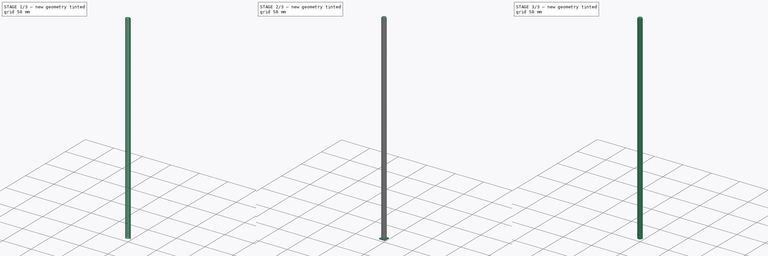
[diagram: build sequence overview — one tinted view per stage of 3, left to right]
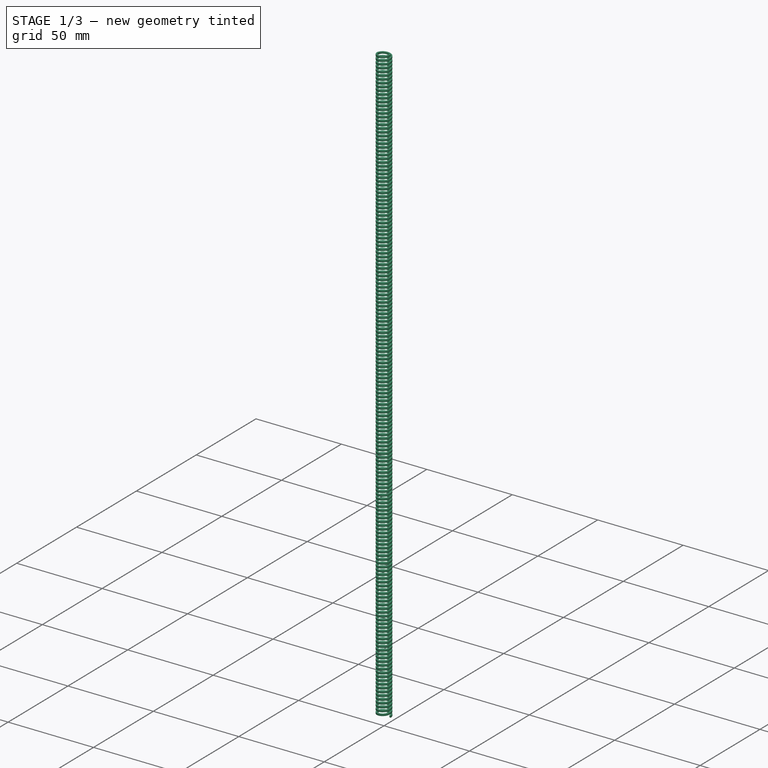
[diagram: stage 1 of 3 — iso view after this stage's code; geometry added in this stage tinted green]
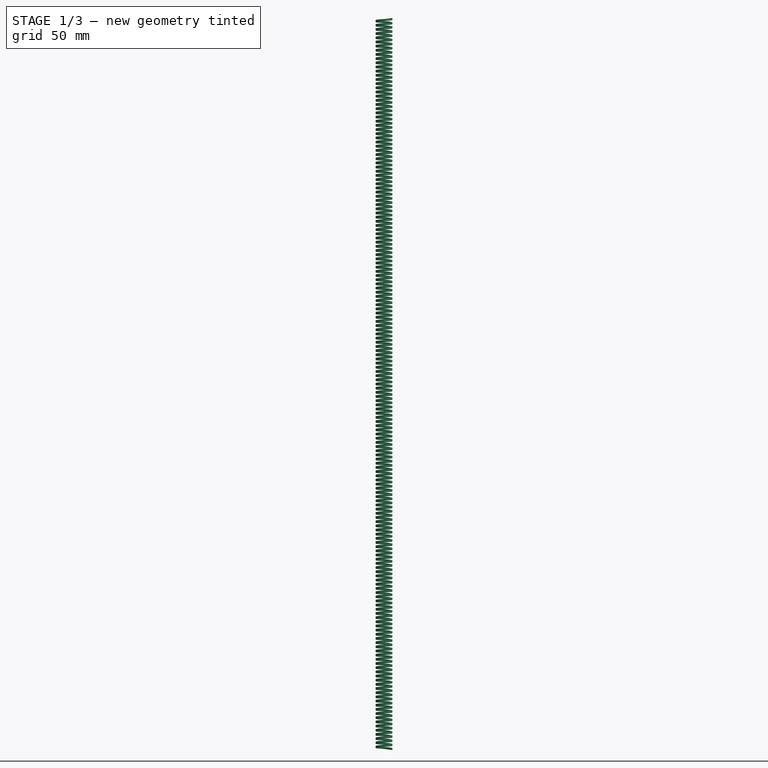
[diagram: stage 1 of 3 — front view after this stage's code; geometry added in this stage tinted green]
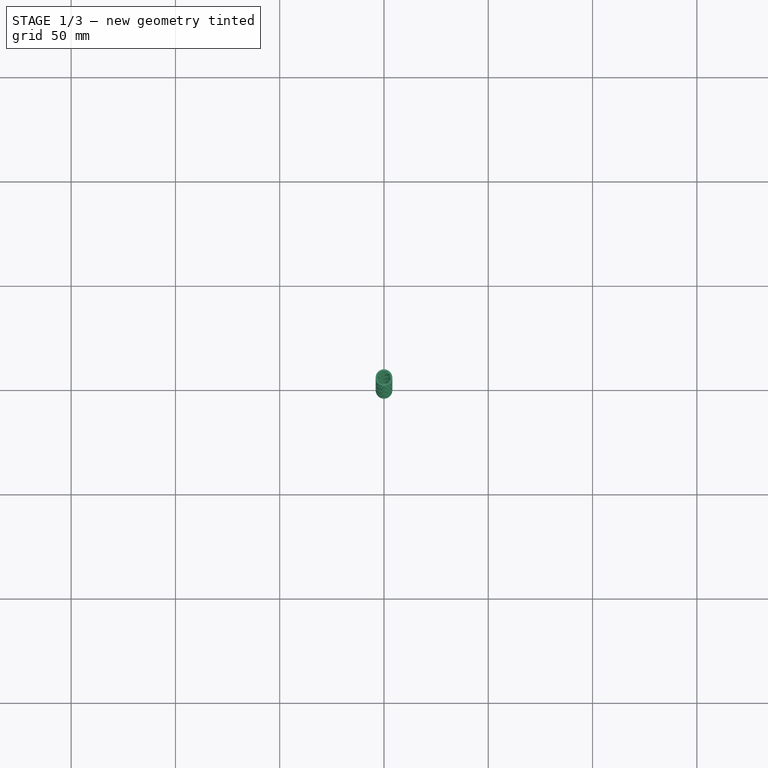
[diagram: stage 1 of 3 — top view after this stage's code; geometry added in this stage tinted green]
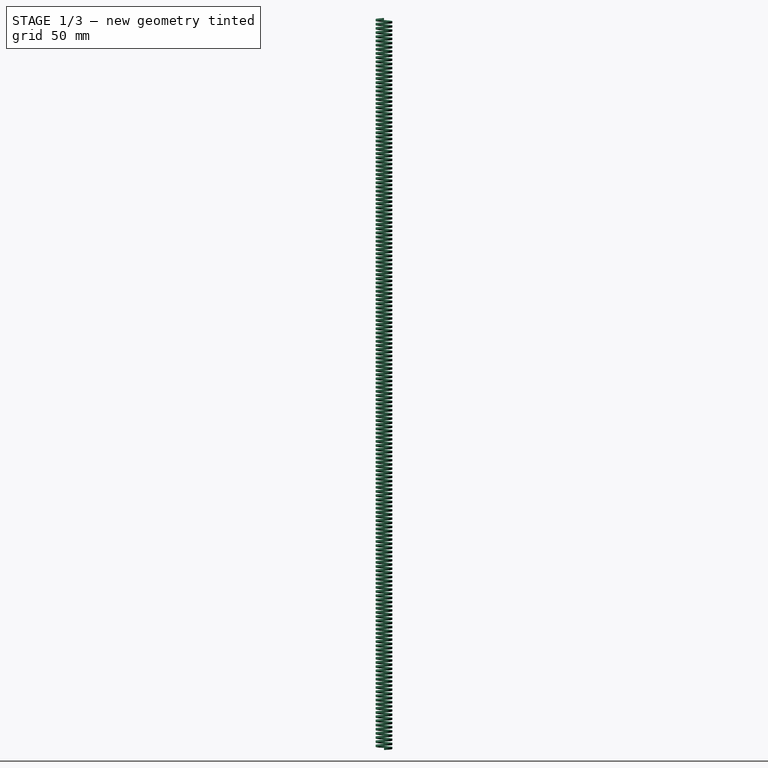
[diagram: stage 1 of 3 — right view after this stage's code; geometry added in this stage tinted green]
FCSTD DOCUMENT  (FreeCAD 0.16R4945 (Git))
Label: Lead Screw 8mm-2.0 x 350mm
License: All rights reserved
LicenseURL: http://en.wikipedia.org/wiki/All_rights_reserved
objects: Sketcher::SketchObject×2, Part::Cut×2, Part::Cylinder×1, PartDesign::Pad×1, Part::Feature×1, Part::Helix×1, Part::Sweep×1, Part::FeaturePython×1, Part::MultiFuse×1
note: 12 computed .brp shape members not serialized (recipe doc carries the construction recipe); baked Part::Feature solids carry a one-line shape summary decoded from their .brp

FEATURE [Part::Feature] Pad001001  label="cut tool top"
  Placement = pos=(0,6.85453e-07,501.5) rot=(0,0,1;0rad)
  shape: bbox 10 x 10 x 1.5 mm, 6 faces (baked)
FEATURE [Part::Helix] Helix  label="helix (9.99999mm)"
  Angle = 0
  Height = 9.99999
  LocalCoord = 0
  Pitch = 2
  Radius = 4
  Style = 1
FEATURE [Sketcher::SketchObject] Sketch002  label="tooth profile sketch"
  Placement = pos=(3.13397,0,-0.5) rot=(1,0,0;1.5708rad)
  sketch-geometry (4):
    g0: LineSegment StartX=0 StartY=0 StartZ=0 EndX=0.866025 EndY=0 EndZ=0
    g1: LineSegment StartX=0.866025 StartY=0 StartZ=0 EndX=0.866025 EndY=1 EndZ=0
    g2: LineSegment StartX=0.866025 StartY=1 StartZ=0 EndX=0 EndY=1 EndZ=0
    g3: LineSegment StartX=0 StartY=1 StartZ=0 EndX=0 EndY=0 EndZ=0
  constraints (12):
    c: PointOnObject(g2,g-2)
    c: Coincident(g0,g1)
    c: Coincident(g1,g2)
    c: Coincident(g2,g3)
    c: Coincident(g3,g0)
    c: Horizontal(g0)
    c: Horizontal(g2)
    c: Vertical(g1)
    c: Vertical(g3)
    c: Coincident(g0,g-1)
    c: DistanceX(g0) = 0.866025
    c: DistanceY(g3) = -1
FEATURE [Part::Sweep] Sweep001  label="Sweep"
  Frenet = true
  Sections = -> [Sketch002]
  Solid = true
  Spine = -> Helix
  Transition = 1
FEATURE [Part::FeaturePython] Array  label="array of sweeps (10mmx50)"  # Draft array (typed FeaturePython)
  Angle = 360
  ArrayType = 0
  Axis = (0,0,1)
  Base = -> Sweep001
  Center = (0,0,0)
  Fuse = true
  IntervalAxis = (0,0,0)
  IntervalX = (0,0,0)
  IntervalY = (0,0,0)
  IntervalZ = (0,0,10)
  NumberPolar = 1
  NumberX = 1
  NumberY = 1
  NumberZ = 35
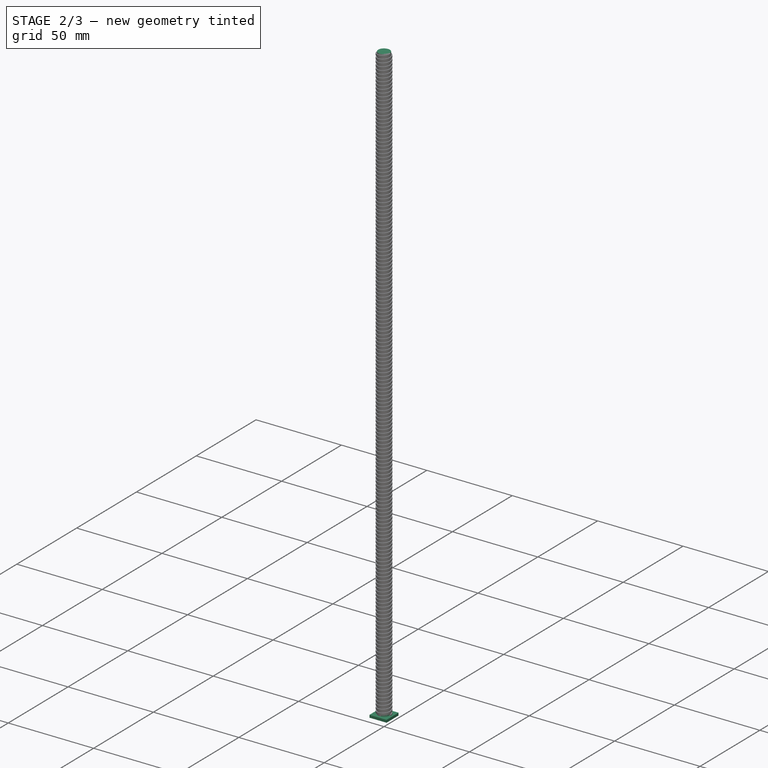
[diagram: stage 2 of 3 — iso view after this stage's code; geometry added in this stage tinted green]
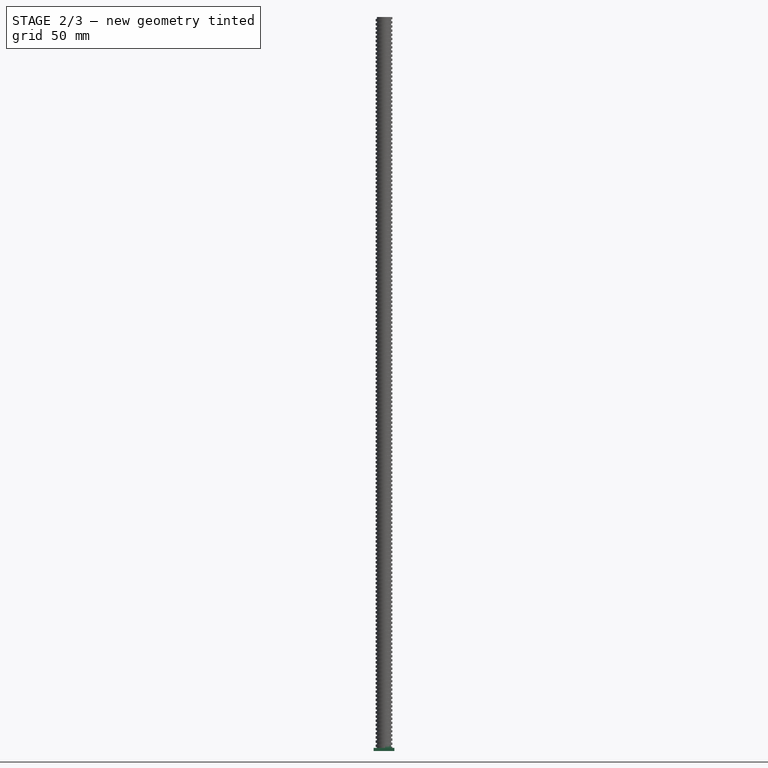
[diagram: stage 2 of 3 — front view after this stage's code; geometry added in this stage tinted green]
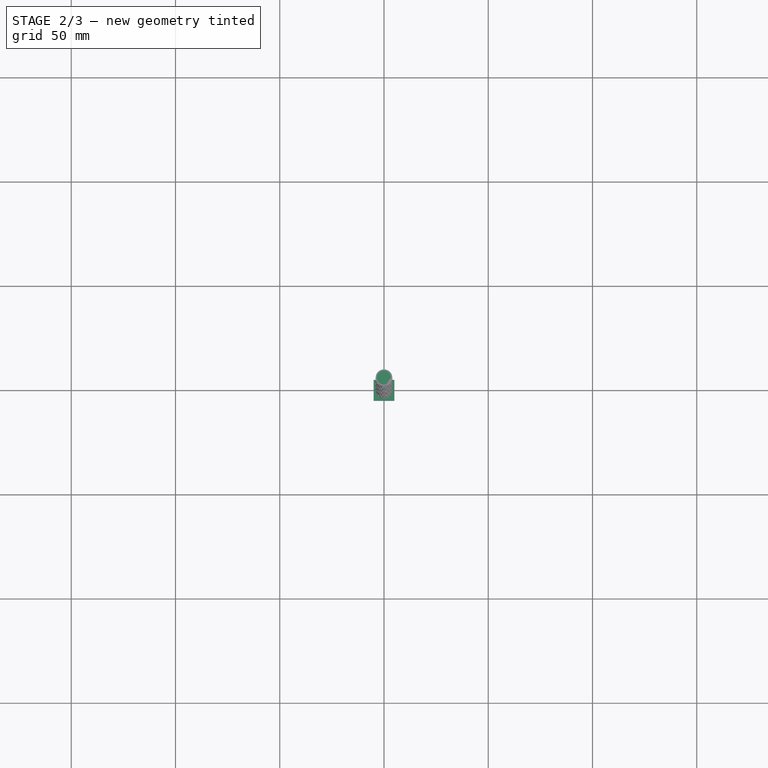
[diagram: stage 2 of 3 — top view after this stage's code; geometry added in this stage tinted green]
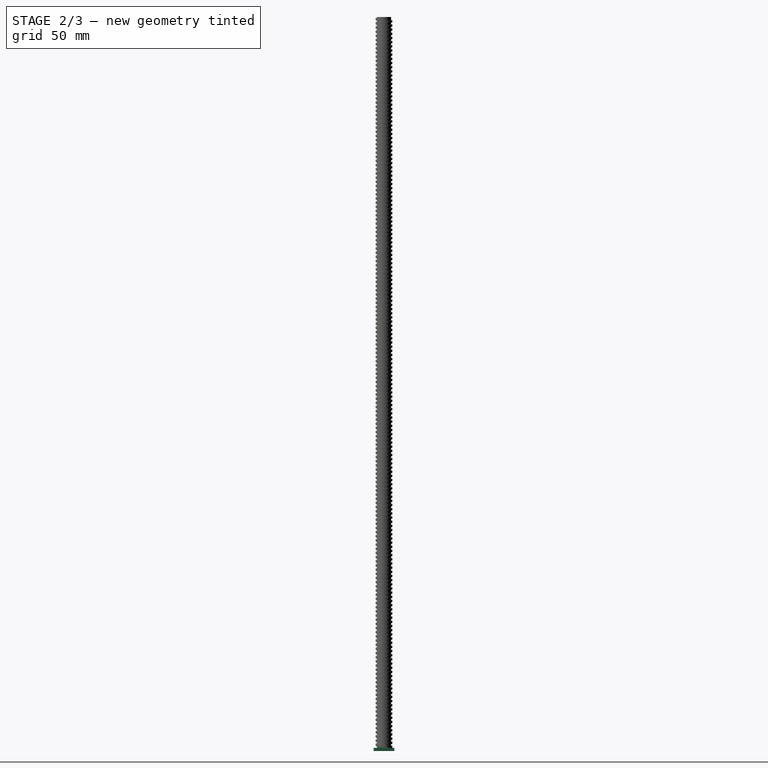
[diagram: stage 2 of 3 — right view after this stage's code; geometry added in this stage tinted green]
FEATURE [Part::Cylinder] Cylinder  label="cylinder"
  Angle = 360
  Height = 350.5
  Placement = pos=(0,-9.64902e-05,0) rot=(0,0,1;0.349066rad)
  Radius = 3.4
FEATURE [Sketcher::SketchObject] Sketch001
  sketch-geometry (4):
    g0: LineSegment StartX=-5 StartY=5 StartZ=0 EndX=5 EndY=5 EndZ=0
    g1: LineSegment StartX=5 StartY=5 StartZ=0 EndX=5 EndY=-5 EndZ=0
    g2: LineSegment StartX=5 StartY=-5 StartZ=0 EndX=-5 EndY=-5 EndZ=0
    g3: LineSegment StartX=-5 StartY=-5 StartZ=0 EndX=-5 EndY=5 EndZ=0
  constraints (12):
    c: Coincident(g0,g1)
    c: Coincident(g1,g2)
    c: Coincident(g2,g3)
    c: Coincident(g3,g0)
    c: Horizontal(g0)
    c: Horizontal(g2)
    c: Vertical(g1)
    c: Vertical(g3)
    c: Symmetric(g2,g1,g-2)
    c: Symmetric(g2,g0,g-1)
    c: DistanceX(g2) = -10
    c: Equal(g1,g0)
FEATURE [PartDesign::Pad] Pad001  label="cut tool bottom"
  Length = 1.5
  Length2 = 100
  Reversed = true
  Sketch = -> Sketch001
  Type = 0
FEATURE [Part::MultiFuse] Fusion  label="fusion of thread and cylinder"
  Shapes = -> [Cylinder,Array]
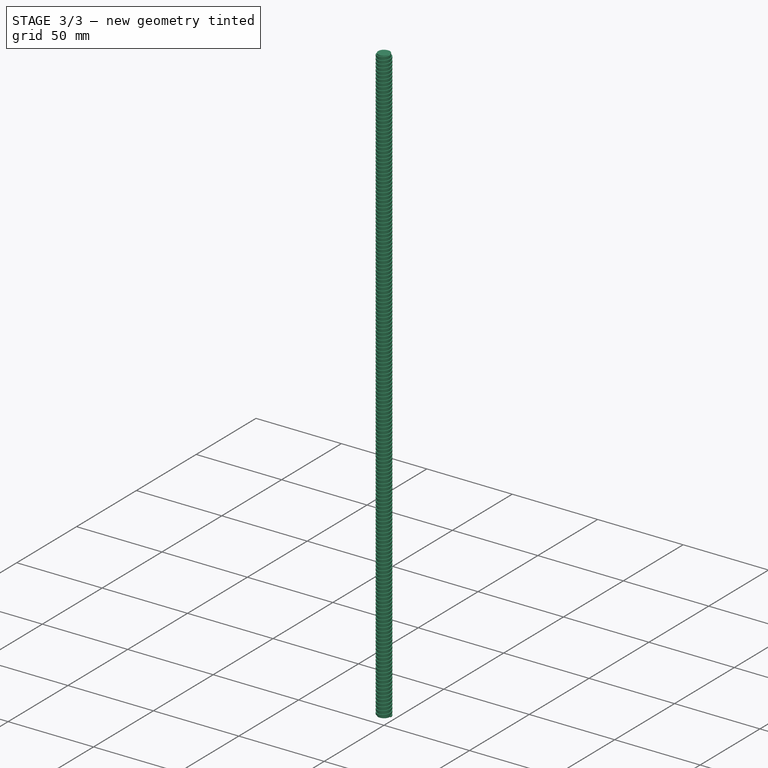
[diagram: stage 3 of 3 — iso view after this stage's code; geometry added in this stage tinted green]
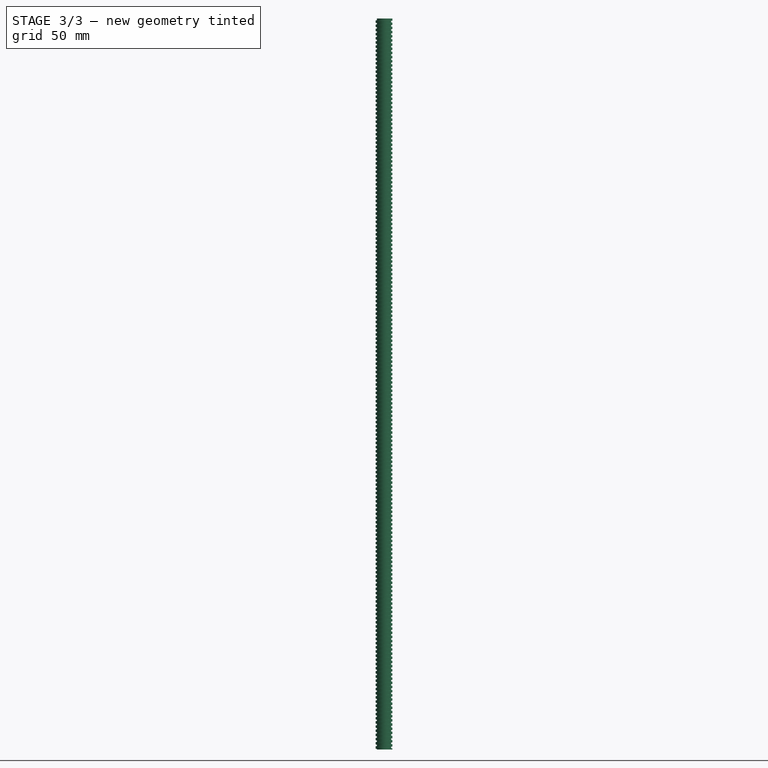
[diagram: stage 3 of 3 — front view after this stage's code; geometry added in this stage tinted green]
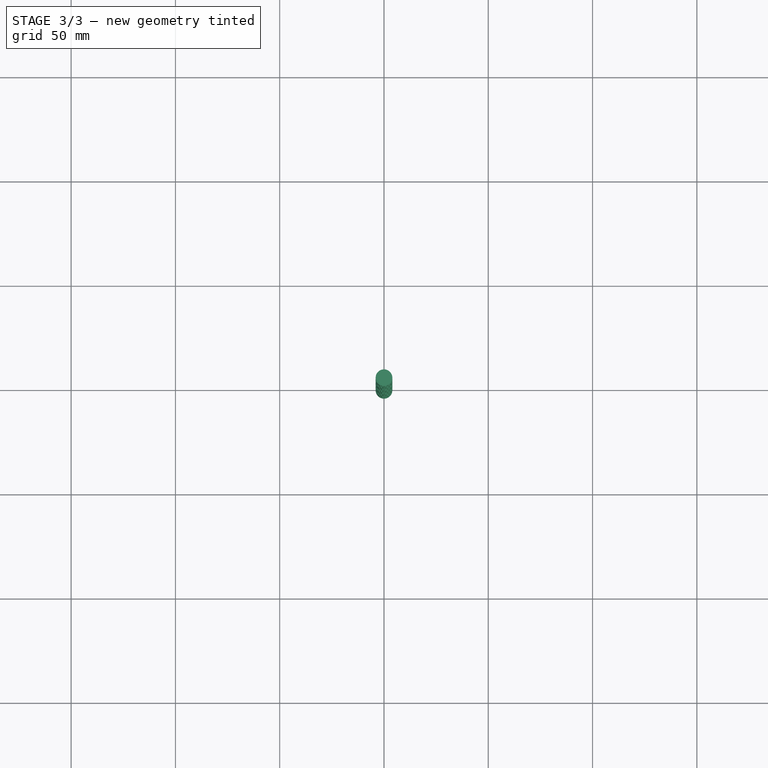
[diagram: stage 3 of 3 — top view after this stage's code; geometry added in this stage tinted green]
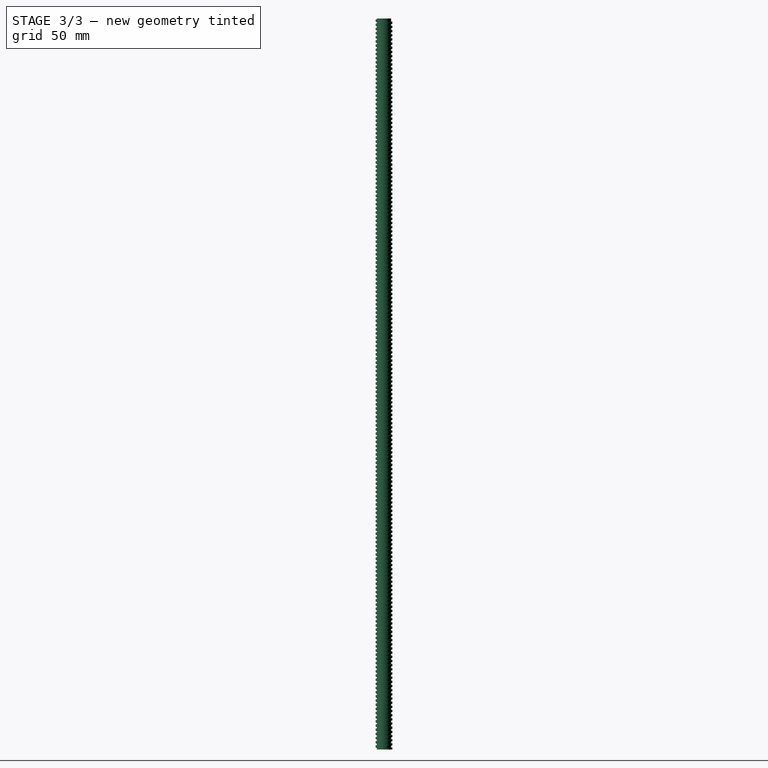
[diagram: stage 3 of 3 — right view after this stage's code; geometry added in this stage tinted green]
FEATURE [Part::Cut] Cut  label="cut off bottom excess"
  Base = -> Fusion
  Tool = -> Pad001
FEATURE [Part::Cut] Cut001  label="lead screw 400-8-2mm"
  Base = -> Cut
  Tool = -> Pad001001
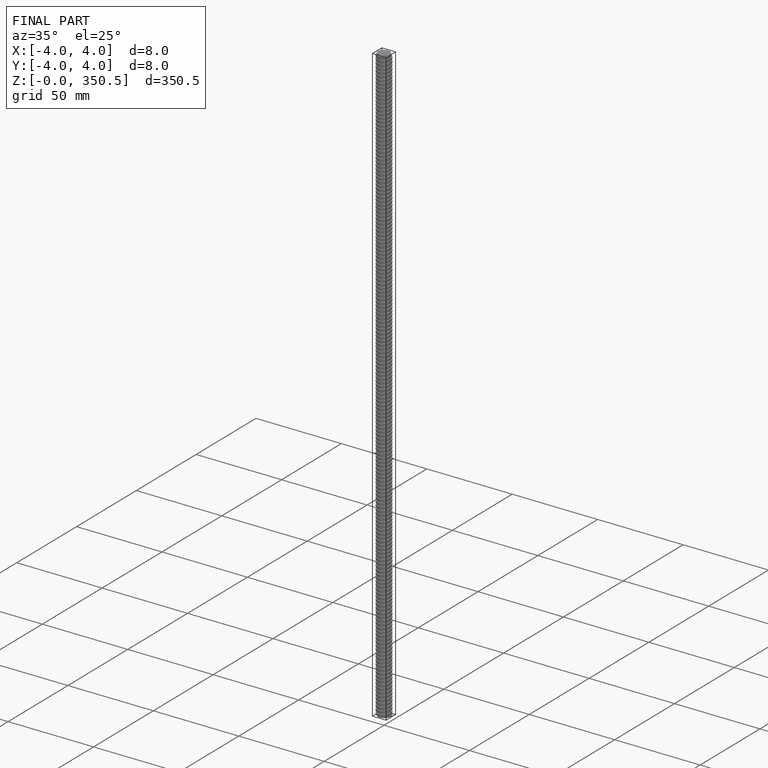
[diagram: finished part — iso view with bounding-box wireframe]
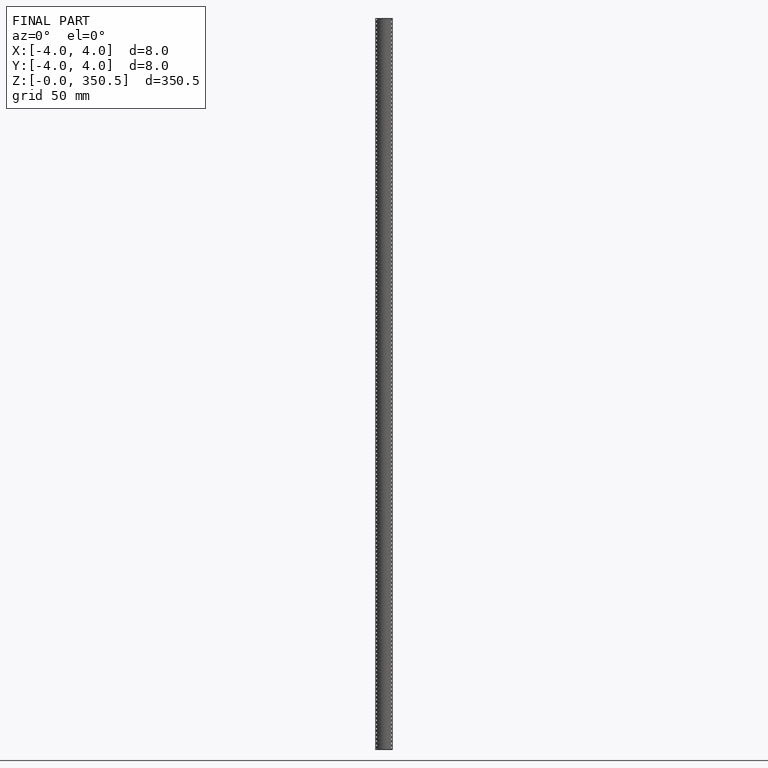
[diagram: finished part — front view with bounding-box wireframe]
